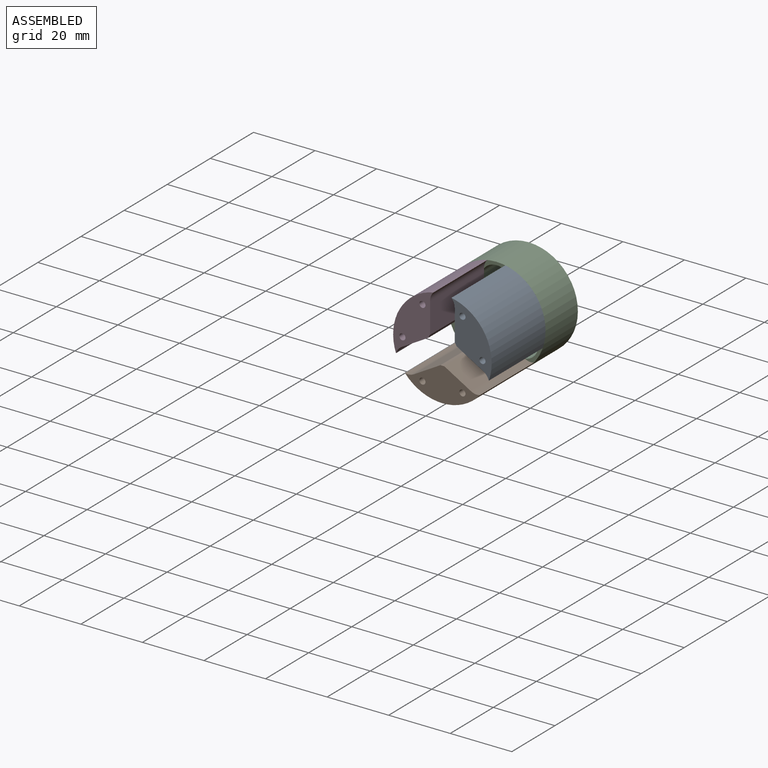
[diagram: assembled view]
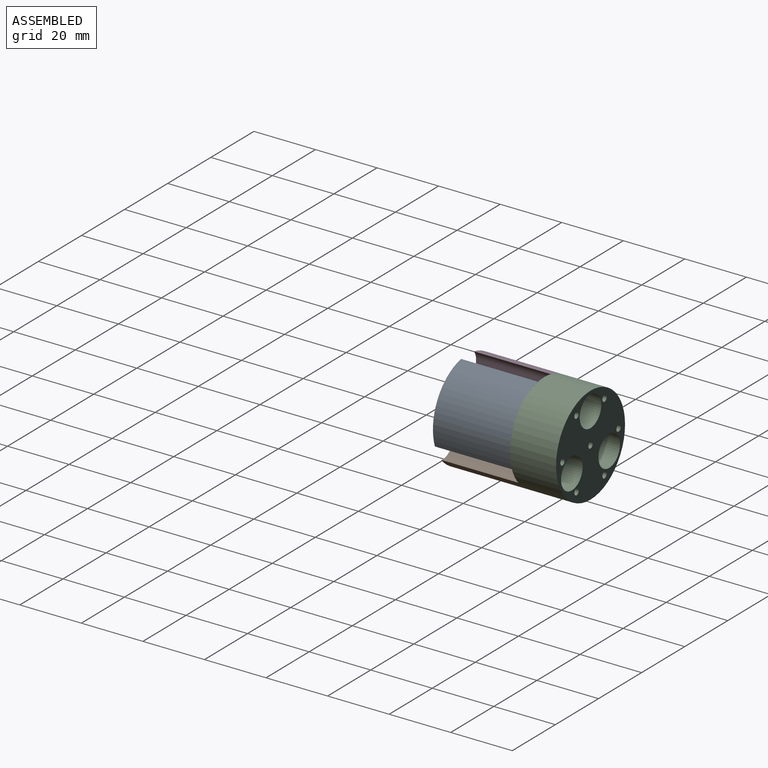
[diagram: assembled view, second angle]
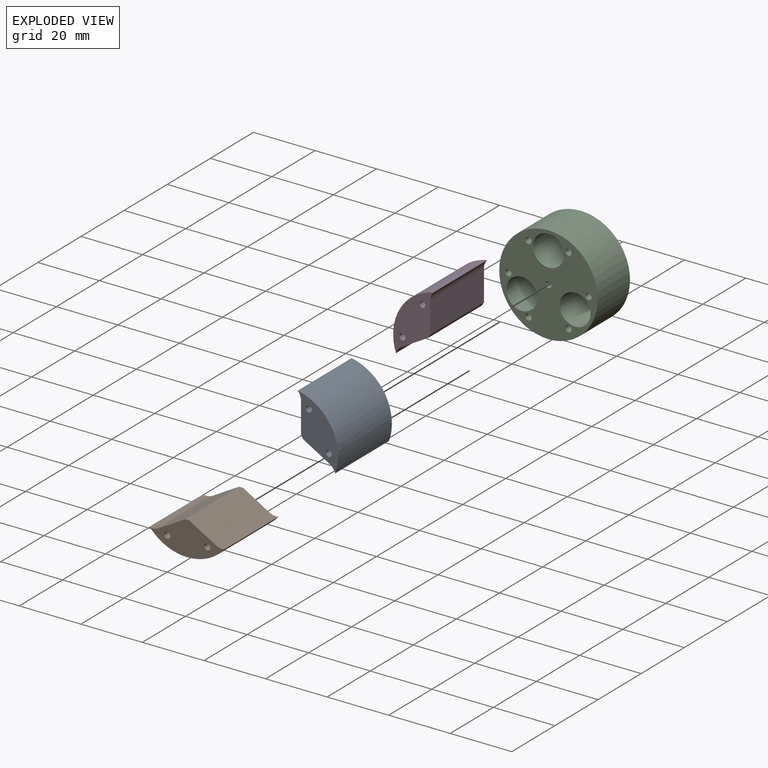
[diagram: exploded view]
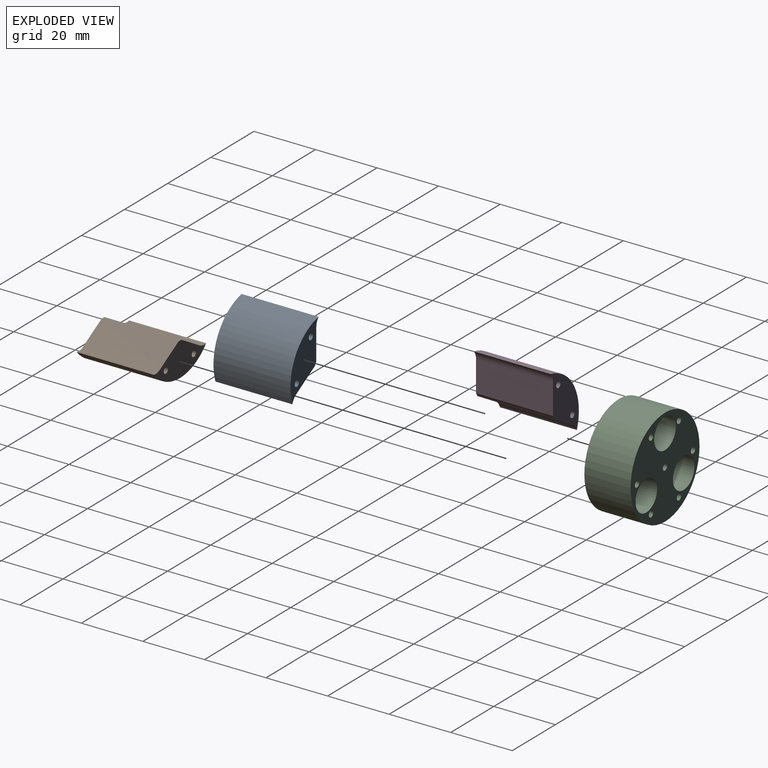
[diagram: exploded view, second angle]
ASSEMBLY  parts=4 mates=6
PART A: 10 faces, bbox 13.1x25x21.1 mm
  f0: plane 25x10mm, normal (-1,0,0), area 250mm2, adj f1,f6,f8,f9
  f1: cylinder r=5mm len=25mm, axis (0,1,0), area 30mm2, adj f0,f2,f8,f9
  f2: plane 25x8.66mm, normal (-0.5,0,-0.87), area 250mm2, adj f1,f3,f8,f9
  f3: cylinder r=4mm len=25mm, axis (0,1,0), area 75.1mm2, adj f2,f4,f8,f9
  f4: cylinder r=16mm len=25mm, axis (0,1,0), area 690.8mm2, adj f3,f6,f8,f9
  f5: cylinder r=1mm len=25mm, axis (0,1,0), area 157.1mm2, adj f8,f9
  f6: cylinder r=4mm len=25mm, axis (0,1,0), area 75.1mm2, adj f0,f4,f8,f9
  f7: cylinder r=1mm len=25mm, axis (0,1,0), area 157.1mm2, adj f8,f9
  f8: plane 21.07x13.08mm, normal (0,-1,0), area 145.7mm2, adj f0,f1,f2,f3,f4,f5,f6,f7
  f9: plane 21.07x13.08mm, normal (0,1,0), area 145.7mm2, adj f0,f1,f2,f3,f4,f5,f6,f7
PART B: same geometry as A
PART C: 13 faces, bbox 32x15x32 mm
  f0: cylinder r=16mm len=32mm, axis (0,1,0), area 1508mm2, adj f5,f6
  f1: cylinder r=5mm len=15mm, axis (0,1,0), area 471.2mm2, adj f5,f6
  f2: cylinder r=5mm len=15mm, axis (0,1,0), area 471.2mm2, adj f5,f6
  f3: cylinder r=5mm len=15mm, axis (0,1,0), area 471.2mm2, adj f5,f6
  f4: cylinder r=1mm len=15mm, axis (0,1,0), area 94.2mm2, adj f5,f6
  f5: plane 32x32mm, normal (0,-1,0), area 546.6mm2, adj f0,f1,f2,f3,f4,f7,f8,f9
  f6: plane 32x32mm, normal (0,1,0), area 546.6mm2, adj f0,f1,f2,f3,f4,f7,f8,f9
  f7: cylinder r=1mm len=15mm, axis (0,-1,0), area 94.2mm2, adj f5,f6
  f8: cylinder r=1mm len=15mm, axis (0,-1,0), area 94.2mm2, adj f5,f6
  f9: cylinder r=1mm len=15mm, axis (0,-1,0), area 94.2mm2, adj f5,f6
  f10: cylinder r=1mm len=15mm, axis (0,-1,0), area 94.2mm2, adj f5,f6
  f11: cylinder r=1mm len=15mm, axis (0,-1,0), area 94.2mm2, adj f5,f6
  f12: cylinder r=1mm len=15mm, axis (0,-1,0), area 94.2mm2, adj f5,f6
PART D: same geometry as A
PLACE A t=(0.16,-7.48,-0.11)mm
PLACE B rot(axis=(0,1,0),120deg) t=(0.16,-7.48,-0.11)mm
PLACE C t=(0.16,7.52,-0.11)mm fixed
PLACE D rot(axis=(0,-1,0),120deg) t=(0.16,-7.48,-0.11)mm
MATE revolute A.f7 <-> C.f9  axis (0,1,0) through (13.16,-7.48,-0.11)mm
MATE revolute B.f7 <-> C.f11  axis (0,1,0) through (-6.34,-7.48,-11.37)mm
MATE revolute D.f5 <-> C.f12  axis (0,1,0) through (-12.84,-7.48,-0.11)mm
MATE revolute D.f7 <-> C.f7  axis (0,1,0) through (-6.34,-7.48,11.15)mm
MATE revolute A.f5 <-> C.f8  axis (0,1,0) through (6.66,-7.48,11.15)mm
MATE revolute B.f5 <-> C.f10  axis (0,1,0) through (6.66,-7.48,-11.37)mm
